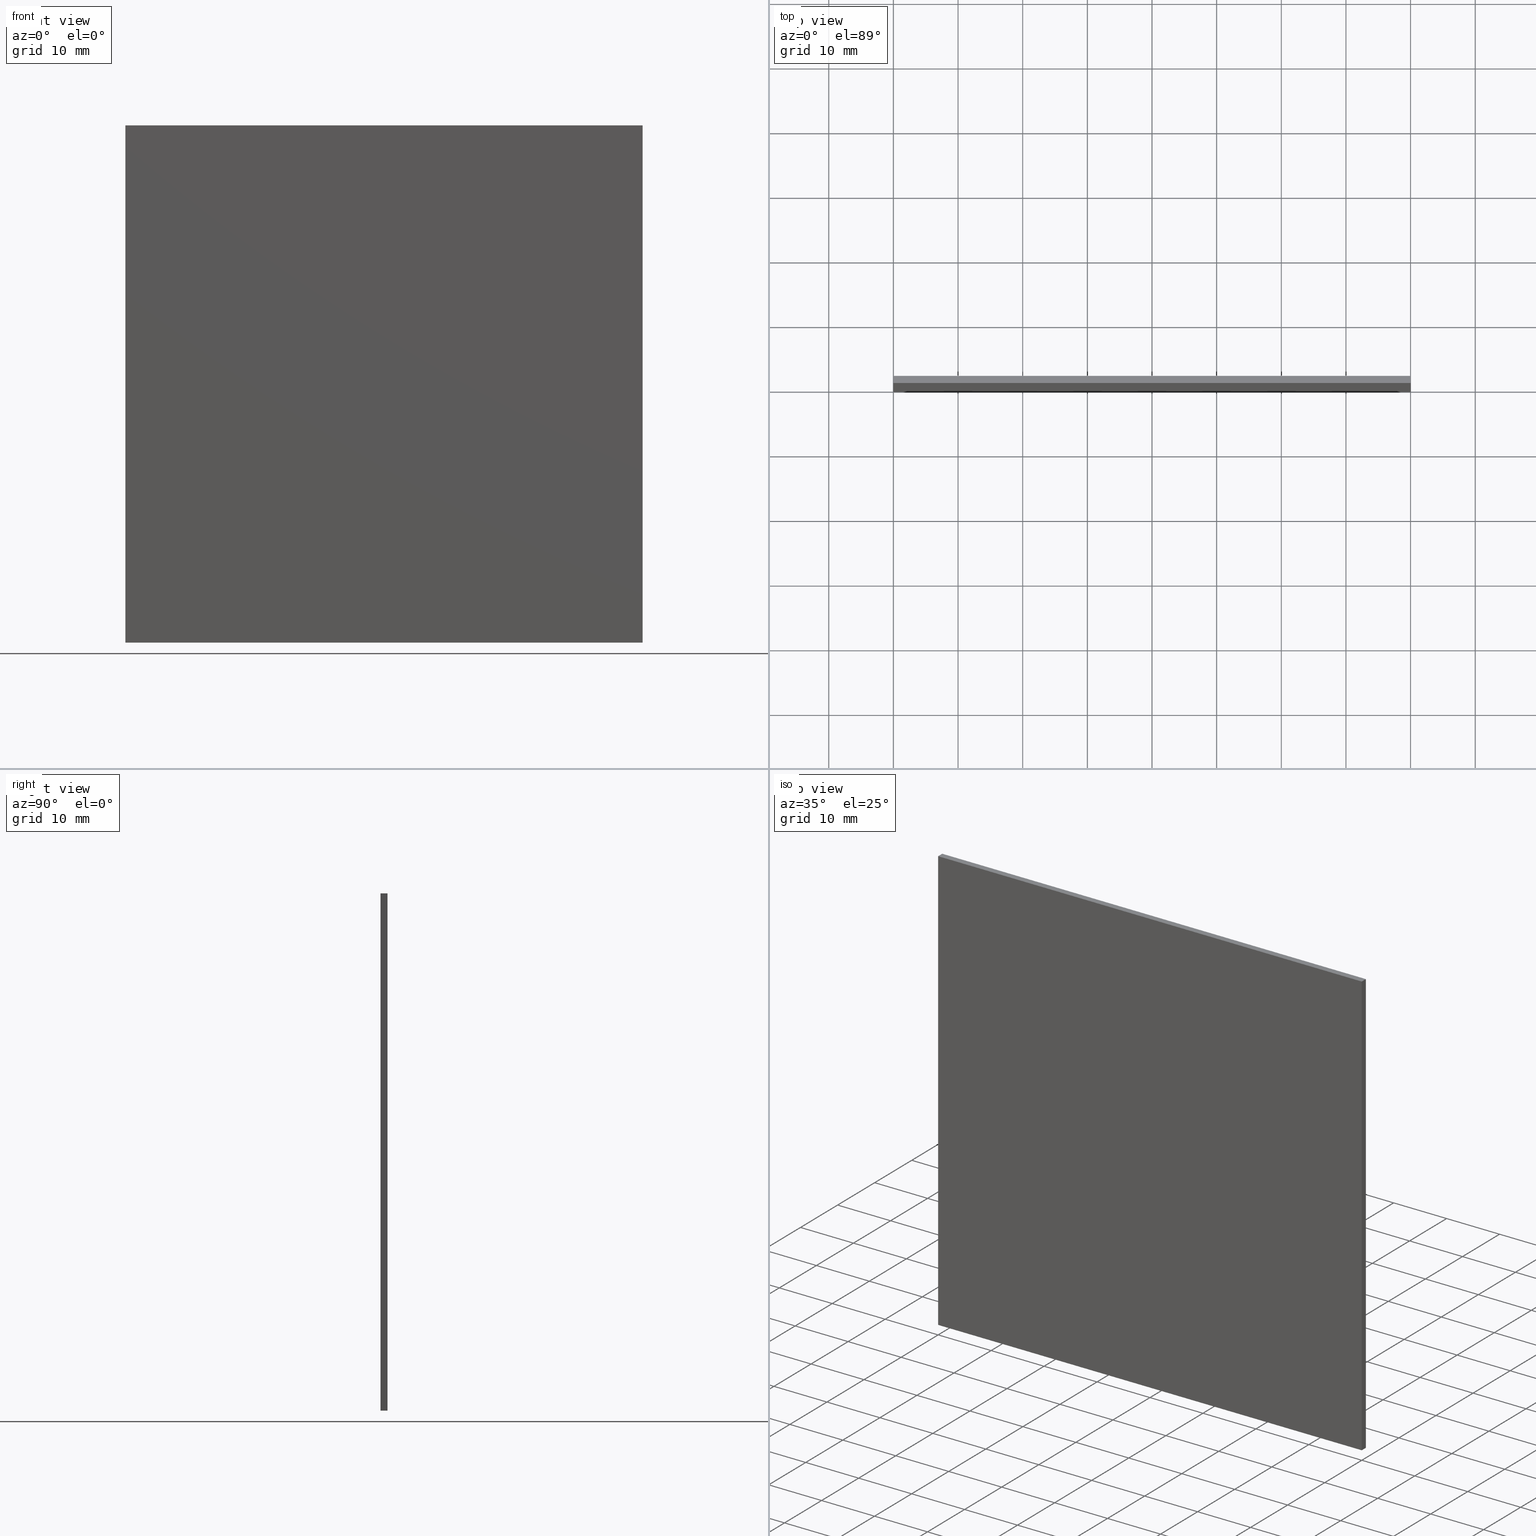
[diagram: canonical four-view strip — front | top / right | iso, engineering-drawing reading convention]
A machine part, canonical four-view strip (front | top / right | iso — engineering-drawing reading convention). The complete STEP part file that produces these views, byte-faithful:
ISO-10303-21;
HEADER;
FILE_DESCRIPTION (( 'STEP AP214' ),
    '1' );
FILE_NAME ('258507.STEP',
    '2019-08-06T09:45:51',
    ( 'user' ),
    ( '΢���й�' ),
    'SwSTEP 2.0',
    'SolidWorks 2016',
    '' );
FILE_SCHEMA (( 'AUTOMOTIVE_DESIGN' ));
ENDSEC;

DATA;
#1 = LINE ( 'NONE', #183, #92 ) ;
#2 = SURFACE_SIDE_STYLE ('',( #97 ) ) ;
#3 = SURFACE_STYLE_USAGE ( .BOTH. , #24 ) ;
#4 = PRODUCT_DEFINITION_SHAPE ( 'NONE', 'NONE',  #121 ) ;
#5 = ORIENTED_EDGE ( 'NONE', *, *, #111, .F. ) ;
#6 = AXIS2_PLACEMENT_3D ( 'NONE', #127, #174, #82 ) ;
#7 = DIRECTION ( 'NONE',  ( -0.0000000000000000000, -1.000000000000000000, -0.0000000000000000000 ) ) ;
#8 = FACE_OUTER_BOUND ( 'NONE', #64, .T. ) ;
#9 = ORIENTED_EDGE ( 'NONE', *, *, #91, .T. ) ;
#10 = EDGE_CURVE ( 'NONE', #187, #162, #81, .T. ) ;
#11 = VECTOR ( 'NONE', #36, 1000.000000000000000 ) ;
#12 = PRODUCT_DEFINITION_FORMATION_WITH_SPECIFIED_SOURCE ( '�κ�', '', #89, .NOT_KNOWN. ) ;
#13 = ORIENTED_EDGE ( 'NONE', *, *, #118, .F. ) ;
#14 =( GEOMETRIC_REPRESENTATION_CONTEXT ( 3 ) GLOBAL_UNCERTAINTY_ASSIGNED_CONTEXT ( ( #113 ) ) GLOBAL_UNIT_ASSIGNED_CONTEXT ( ( #69, #168, #154 ) ) REPRESENTATION_CONTEXT ( 'NONE', 'WORKASPACE' ) );
#15 = DIRECTION ( 'NONE',  ( 0.0000000000000000000, 0.0000000000000000000, 1.000000000000000000 ) ) ;
#16 = CARTESIAN_POINT ( 'NONE',  ( -40.00000000000000700, 0.0000000000000000000, 39.99999999999999300 ) ) ;
#17 = VERTEX_POINT ( 'NONE', #189 ) ;
#18 = DIRECTION ( 'NONE',  ( -1.000000000000000000, -0.0000000000000000000, -0.0000000000000000000 ) ) ;
#19 = UNCERTAINTY_MEASURE_WITH_UNIT (LENGTH_MEASURE( 1.000000000000000100E-005 ), #53, 'distance_accuracy_value', 'NONE');
#20 = EDGE_LOOP ( 'NONE', ( #54, #171, #94, #38 ) ) ;
#21 = MECHANICAL_DESIGN_GEOMETRIC_PRESENTATION_REPRESENTATION (  '', ( #30 ), #165 ) ;
#22 = ORIENTED_EDGE ( 'NONE', *, *, #150, .F. ) ;
#23 = DIRECTION ( 'NONE',  ( 1.000000000000000000, 0.0000000000000000000, 0.0000000000000000000 ) ) ;
#24 = SURFACE_SIDE_STYLE ('',( #84 ) ) ;
#25 = APPLICATION_PROTOCOL_DEFINITION ( 'draft international standard', 'automotive_design', 1998, #179 ) ;
#26 = EDGE_LOOP ( 'NONE', ( #46, #172, #68, #170 ) ) ;
#27 = AXIS2_PLACEMENT_3D ( 'NONE', #202, #105, #131 ) ;
#28 = SHAPE_DEFINITION_REPRESENTATION ( #4, #40 ) ;
#29 = EDGE_CURVE ( 'NONE', #140, #144, #138, .T. ) ;
#30 = STYLED_ITEM ( 'NONE', ( #142 ), #157 ) ;
#31 = ADVANCED_FACE ( 'NONE', ( #85 ), #190, .F. ) ;
#32 = CARTESIAN_POINT ( 'NONE',  ( 0.0000000000000000000, 0.0000000000000000000, 0.0000000000000000000 ) ) ;
#33 = ADVANCED_FACE ( 'NONE', ( #93 ), #44, .F. ) ;
#34 = CARTESIAN_POINT ( 'NONE',  ( 40.00000000000000000, 1.100000000000000100, -40.00000000000000700 ) ) ;
#35 = CARTESIAN_POINT ( 'NONE',  ( -40.00000000000001400, 0.0000000000000000000, -40.00000000000000700 ) ) ;
#36 = DIRECTION ( 'NONE',  ( 8.673617379884035500E-017, -0.0000000000000000000, -1.000000000000000000 ) ) ;
#37 = CARTESIAN_POINT ( 'NONE',  ( 40.00000000000000000, 1.100000000000000100, -40.00000000000000700 ) ) ;
#38 = ORIENTED_EDGE ( 'NONE', *, *, #43, .T. ) ;
#39 = DIRECTION ( 'NONE',  ( -0.0000000000000000000, -1.000000000000000000, -0.0000000000000000000 ) ) ;
#40 = ADVANCED_BREP_SHAPE_REPRESENTATION ( '258507', ( #157, #63 ), #159 ) ;
#41 = VERTEX_POINT ( 'NONE', #194 ) ;
#42 = VECTOR ( 'NONE', #60, 1000.000000000000000 ) ;
#43 = EDGE_CURVE ( 'NONE', #187, #133, #59, .T. ) ;
#44 = PLANE ( 'NONE',  #27 ) ;
#45 = ADVANCED_FACE ( 'NONE', ( #123 ), #184, .T. ) ;
#46 = ORIENTED_EDGE ( 'NONE', *, *, #199, .T. ) ;
#47 = CARTESIAN_POINT ( 'NONE',  ( -40.00000000000000700, 1.100000000000000100, 39.99999999999999300 ) ) ;
#48 = PRODUCT_RELATED_PRODUCT_CATEGORY ( 'part', '', ( #89 ) ) ;
#49 = ADVANCED_FACE ( 'NONE', ( #197 ), #87, .F. ) ;
#50 = DIRECTION ( 'NONE',  ( 1.000000000000000000, 0.0000000000000000000, 0.0000000000000000000 ) ) ;
#51 = VECTOR ( 'NONE', #178, 1000.000000000000000 ) ;
#52 = FACE_OUTER_BOUND ( 'NONE', #26, .T. ) ;
#53 =( LENGTH_UNIT ( ) NAMED_UNIT ( * ) SI_UNIT ( .MILLI., .METRE. ) );
#54 = ORIENTED_EDGE ( 'NONE', *, *, #118, .T. ) ;
#55 =( NAMED_UNIT ( * ) SI_UNIT ( $, .STERADIAN. ) SOLID_ANGLE_UNIT ( ) );
#56 = DIRECTION ( 'NONE',  ( 0.0000000000000000000, 0.0000000000000000000, -1.000000000000000000 ) ) ;
#57 = VECTOR ( 'NONE', #23, 1000.000000000000000 ) ;
#58 = CARTESIAN_POINT ( 'NONE',  ( -40.00000000000001400, 0.0000000000000000000, -40.00000000000000700 ) ) ;
#59 = LINE ( 'NONE', #86, #116 ) ;
#60 = DIRECTION ( 'NONE',  ( 8.673617379884035500E-017, -0.0000000000000000000, -1.000000000000000000 ) ) ;
#61 = ORIENTED_EDGE ( 'NONE', *, *, #109, .T. ) ;
#62 = VECTOR ( 'NONE', #149, 1000.000000000000000 ) ;
#63 = AXIS2_PLACEMENT_3D ( 'NONE', #136, #192, #115 ) ;
#64 = EDGE_LOOP ( 'NONE', ( #61, #22, #95, #143 ) ) ;
#65 = ADVANCED_FACE ( 'NONE', ( #52 ), #163, .F. ) ;
#66 = AXIS2_PLACEMENT_3D ( 'NONE', #169, #56, #182 ) ;
#67 = CARTESIAN_POINT ( 'NONE',  ( 39.99999999999999300, 1.100000000000000100, 39.99999999999999300 ) ) ;
#68 = ORIENTED_EDGE ( 'NONE', *, *, #141, .F. ) ;
#69 =( LENGTH_UNIT ( ) NAMED_UNIT ( * ) SI_UNIT ( .MILLI., .METRE. ) );
#70 = FILL_AREA_STYLE_COLOUR ( '', #200 ) ;
#71 = ORIENTED_EDGE ( 'NONE', *, *, #155, .F. ) ;
#72 = PRODUCT_DEFINITION_CONTEXT ( 'detailed design', #179, 'design' ) ;
#73 =( NAMED_UNIT ( * ) SI_UNIT ( $, .STERADIAN. ) SOLID_ANGLE_UNIT ( ) );
#74 = APPLICATION_CONTEXT ( 'automotive_design' ) ;
#75 = DIRECTION ( 'NONE',  ( -8.673617379884034200E-017, 0.0000000000000000000, 1.000000000000000000 ) ) ;
#76 = CARTESIAN_POINT ( 'NONE',  ( 39.99999999999999300, 0.0000000000000000000, 39.99999999999999300 ) ) ;
#77 = VECTOR ( 'NONE', #145, 1000.000000000000000 ) ;
#78 = EDGE_LOOP ( 'NONE', ( #90, #126, #13, #104 ) ) ;
#79 = MECHANICAL_DESIGN_GEOMETRIC_PRESENTATION_REPRESENTATION (  '', ( #198 ), #14 ) ;
#80 = VECTOR ( 'NONE', #181, 1000.000000000000000 ) ;
#81 = LINE ( 'NONE', #191, #77 ) ;
#82 = DIRECTION ( 'NONE',  ( 1.000000000000000000, 0.0000000000000000000, -0.0000000000000000000 ) ) ;
#83 =( NAMED_UNIT ( * ) PLANE_ANGLE_UNIT ( ) SI_UNIT ( $, .RADIAN. ) );
#84 = SURFACE_STYLE_FILL_AREA ( #107 ) ;
#85 = FACE_OUTER_BOUND ( 'NONE', #185, .T. ) ;
#86 = CARTESIAN_POINT ( 'NONE',  ( -40.00000000000001400, 1.100000000000000100, -40.00000000000000700 ) ) ;
#87 = PLANE ( 'NONE',  #132 ) ;
#88 =( NAMED_UNIT ( * ) PLANE_ANGLE_UNIT ( ) SI_UNIT ( $, .RADIAN. ) );
#89 = PRODUCT ( '258507', '258507', '', ( #164 ) ) ;
#90 = ORIENTED_EDGE ( 'NONE', *, *, #109, .F. ) ;
#91 = EDGE_CURVE ( 'NONE', #162, #140, #148, .T. ) ;
#92 = VECTOR ( 'NONE', #18, 1000.000000000000000 ) ;
#93 = FACE_OUTER_BOUND ( 'NONE', #20, .T. ) ;
#94 = ORIENTED_EDGE ( 'NONE', *, *, #10, .F. ) ;
#95 = ORIENTED_EDGE ( 'NONE', *, *, #100, .F. ) ;
#96 = CARTESIAN_POINT ( 'NONE',  ( 40.00000000000000000, 1.100000000000000100, -40.00000000000000700 ) ) ;
#97 = SURFACE_STYLE_FILL_AREA ( #129 ) ;
#98 = LINE ( 'NONE', #96, #42 ) ;
#99 = CARTESIAN_POINT ( 'NONE',  ( 40.00000000000000000, 1.100000000000000100, -40.00000000000000700 ) ) ;
#100 = EDGE_CURVE ( 'NONE', #41, #153, #98, .T. ) ;
#101 = ADVANCED_FACE ( 'NONE', ( #8 ), #167, .F. ) ;
#102 =( LENGTH_UNIT ( ) NAMED_UNIT ( * ) SI_UNIT ( .MILLI., .METRE. ) );
#103 = SURFACE_STYLE_USAGE ( .BOTH. , #2 ) ;
#104 = ORIENTED_EDGE ( 'NONE', *, *, #199, .F. ) ;
#105 = DIRECTION ( 'NONE',  ( 1.000000000000000000, 0.0000000000000000000, -8.673617379884034200E-017 ) ) ;
#106 = VECTOR ( 'NONE', #196, 1000.000000000000000 ) ;
#107 = FILL_AREA_STYLE ('',( #70 ) ) ;
#108 = UNCERTAINTY_MEASURE_WITH_UNIT (LENGTH_MEASURE( 1.000000000000000100E-005 ), #102, 'distance_accuracy_value', 'NONE');
#109 = EDGE_CURVE ( 'NONE', #144, #17, #186, .T. ) ;
#110 = ORIENTED_EDGE ( 'NONE', *, *, #29, .T. ) ;
#111 = EDGE_CURVE ( 'NONE', #41, #144, #176, .T. ) ;
#112 = AXIS2_PLACEMENT_3D ( 'NONE', #158, #146, #188 ) ;
#113 = UNCERTAINTY_MEASURE_WITH_UNIT (LENGTH_MEASURE( 1.000000000000000100E-005 ), #69, 'distance_accuracy_value', 'NONE');
#114 = DIRECTION ( 'NONE',  ( 0.0000000000000000000, 1.000000000000000000, -0.0000000000000000000 ) ) ;
#115 = DIRECTION ( 'NONE',  ( 1.000000000000000000, 0.0000000000000000000, 0.0000000000000000000 ) ) ;
#116 = VECTOR ( 'NONE', #7, 1000.000000000000000 ) ;
#117 = CARTESIAN_POINT ( 'NONE',  ( -40.00000000000000700, 1.100000000000000100, 39.99999999999999300 ) ) ;
#118 = EDGE_CURVE ( 'NONE', #133, #140, #166, .T. ) ;
#119 = CLOSED_SHELL ( 'NONE', ( #101, #65, #33, #31, #45, #49 ) ) ;
#120 = PRESENTATION_LAYER_ASSIGNMENT (  '', '', ( #198 ) ) ;
#121 = PRODUCT_DEFINITION ( 'δ֪', '', #12, #72 ) ;
#122 = LINE ( 'NONE', #35, #80 ) ;
#123 = FACE_OUTER_BOUND ( 'NONE', #180, .T. ) ;
#124 = ORIENTED_EDGE ( 'NONE', *, *, #155, .T. ) ;
#125 = PRESENTATION_LAYER_ASSIGNMENT (  '', '', ( #30 ) ) ;
#126 = ORIENTED_EDGE ( 'NONE', *, *, #29, .F. ) ;
#127 = CARTESIAN_POINT ( 'NONE',  ( -40.00000000000001400, 1.100000000000000100, -40.00000000000000700 ) ) ;
#128 = COLOUR_RGB ( '',1.000000000000000000, 1.000000000000000000, 1.000000000000000000 ) ;
#129 = FILL_AREA_STYLE ('',( #156 ) ) ;
#130 = VECTOR ( 'NONE', #50, 1000.000000000000000 ) ;
#131 = DIRECTION ( 'NONE',  ( -8.673617379884034200E-017, 0.0000000000000000000, -1.000000000000000000 ) ) ;
#132 = AXIS2_PLACEMENT_3D ( 'NONE', #32, #114, #15 ) ;
#133 = VERTEX_POINT ( 'NONE', #135 ) ;
#134 = APPLICATION_PROTOCOL_DEFINITION ( 'draft international standard', 'automotive_design', 1998, #74 ) ;
#135 = CARTESIAN_POINT ( 'NONE',  ( -40.00000000000001400, 0.0000000000000000000, -40.00000000000000700 ) ) ;
#136 = CARTESIAN_POINT ( 'NONE',  ( 0.0000000000000000000, 0.0000000000000000000, 0.0000000000000000000 ) ) ;
#137 = LINE ( 'NONE', #37, #51 ) ;
#138 = LINE ( 'NONE', #16, #130 ) ;
#139 = CARTESIAN_POINT ( 'NONE',  ( -40.00000000000001400, 1.100000000000000100, -40.00000000000000700 ) ) ;
#140 = VERTEX_POINT ( 'NONE', #152 ) ;
#141 = EDGE_CURVE ( 'NONE', #153, #187, #1, .T. ) ;
#142 = PRESENTATION_STYLE_ASSIGNMENT (( #103 ) ) ;
#143 = ORIENTED_EDGE ( 'NONE', *, *, #111, .T. ) ;
#144 = VERTEX_POINT ( 'NONE', #76 ) ;
#145 = DIRECTION ( 'NONE',  ( 8.673617379884035500E-017, 0.0000000000000000000, 1.000000000000000000 ) ) ;
#146 = DIRECTION ( 'NONE',  ( 0.0000000000000000000, 1.000000000000000000, -0.0000000000000000000 ) ) ;
#147 = PRESENTATION_STYLE_ASSIGNMENT (( #3 ) ) ;
#148 = LINE ( 'NONE', #47, #201 ) ;
#149 = DIRECTION ( 'NONE',  ( -0.0000000000000000000, -1.000000000000000000, -0.0000000000000000000 ) ) ;
#150 = EDGE_CURVE ( 'NONE', #153, #17, #137, .T. ) ;
#151 = CARTESIAN_POINT ( 'NONE',  ( 40.00000000000000000, 0.0000000000000000000, -40.00000000000000700 ) ) ;
#152 = CARTESIAN_POINT ( 'NONE',  ( -40.00000000000000700, 0.0000000000000000000, 39.99999999999999300 ) ) ;
#153 = VERTEX_POINT ( 'NONE', #99 ) ;
#154 =( NAMED_UNIT ( * ) SI_UNIT ( $, .STERADIAN. ) SOLID_ANGLE_UNIT ( ) );
#155 = EDGE_CURVE ( 'NONE', #162, #41, #175, .T. ) ;
#156 = FILL_AREA_STYLE_COLOUR ( '', #128 ) ;
#157 = MANIFOLD_SOLID_BREP ( '͹̨-����1', #119 ) ;
#158 = CARTESIAN_POINT ( 'NONE',  ( 0.0000000000000000000, 1.100000000000000100, 0.0000000000000000000 ) ) ;
#159 =( GEOMETRIC_REPRESENTATION_CONTEXT ( 3 ) GLOBAL_UNCERTAINTY_ASSIGNED_CONTEXT ( ( #108 ) ) GLOBAL_UNIT_ASSIGNED_CONTEXT ( ( #102, #88, #73 ) ) REPRESENTATION_CONTEXT ( 'NONE', 'WORKASPACE' ) );
#160 = ORIENTED_EDGE ( 'NONE', *, *, #141, .T. ) ;
#161 = ORIENTED_EDGE ( 'NONE', *, *, #10, .T. ) ;
#162 = VERTEX_POINT ( 'NONE', #117 ) ;
#163 = PLANE ( 'NONE',  #6 ) ;
#164 = PRODUCT_CONTEXT ( 'NONE', #74, 'mechanical' ) ;
#165 =( GEOMETRIC_REPRESENTATION_CONTEXT ( 3 ) GLOBAL_UNCERTAINTY_ASSIGNED_CONTEXT ( ( #19 ) ) GLOBAL_UNIT_ASSIGNED_CONTEXT ( ( #53, #83, #55 ) ) REPRESENTATION_CONTEXT ( 'NONE', 'WORKASPACE' ) );
#166 = LINE ( 'NONE', #58, #106 ) ;
#167 = PLANE ( 'NONE',  #177 ) ;
#168 =( NAMED_UNIT ( * ) PLANE_ANGLE_UNIT ( ) SI_UNIT ( $, .RADIAN. ) );
#169 = CARTESIAN_POINT ( 'NONE',  ( -40.00000000000000700, 1.100000000000000100, 39.99999999999999300 ) ) ;
#170 = ORIENTED_EDGE ( 'NONE', *, *, #150, .T. ) ;
#171 = ORIENTED_EDGE ( 'NONE', *, *, #91, .F. ) ;
#172 = ORIENTED_EDGE ( 'NONE', *, *, #43, .F. ) ;
#173 = ORIENTED_EDGE ( 'NONE', *, *, #100, .T. ) ;
#174 = DIRECTION ( 'NONE',  ( 0.0000000000000000000, 0.0000000000000000000, 1.000000000000000000 ) ) ;
#175 = LINE ( 'NONE', #195, #57 ) ;
#176 = LINE ( 'NONE', #67, #62 ) ;
#177 = AXIS2_PLACEMENT_3D ( 'NONE', #34, #193, #75 ) ;
#178 = DIRECTION ( 'NONE',  ( -0.0000000000000000000, -1.000000000000000000, -0.0000000000000000000 ) ) ;
#179 = APPLICATION_CONTEXT ( 'automotive_design' ) ;
#180 = EDGE_LOOP ( 'NONE', ( #173, #160, #161, #124 ) ) ;
#181 = DIRECTION ( 'NONE',  ( -1.000000000000000000, -0.0000000000000000000, -0.0000000000000000000 ) ) ;
#182 = DIRECTION ( 'NONE',  ( -1.000000000000000000, 0.0000000000000000000, -0.0000000000000000000 ) ) ;
#183 = CARTESIAN_POINT ( 'NONE',  ( -40.00000000000001400, 1.100000000000000100, -40.00000000000000700 ) ) ;
#184 = PLANE ( 'NONE',  #112 ) ;
#185 = EDGE_LOOP ( 'NONE', ( #110, #5, #71, #9 ) ) ;
#186 = LINE ( 'NONE', #151, #11 ) ;
#187 = VERTEX_POINT ( 'NONE', #139 ) ;
#188 = DIRECTION ( 'NONE',  ( 0.0000000000000000000, 0.0000000000000000000, 1.000000000000000000 ) ) ;
#189 = CARTESIAN_POINT ( 'NONE',  ( 40.00000000000000000, 0.0000000000000000000, -40.00000000000000700 ) ) ;
#190 = PLANE ( 'NONE',  #66 ) ;
#191 = CARTESIAN_POINT ( 'NONE',  ( -40.00000000000001400, 1.100000000000000100, -40.00000000000000700 ) ) ;
#192 = DIRECTION ( 'NONE',  ( 0.0000000000000000000, 0.0000000000000000000, 1.000000000000000000 ) ) ;
#193 = DIRECTION ( 'NONE',  ( -1.000000000000000000, 0.0000000000000000000, -8.673617379884034200E-017 ) ) ;
#194 = CARTESIAN_POINT ( 'NONE',  ( 39.99999999999999300, 1.100000000000000100, 39.99999999999999300 ) ) ;
#195 = CARTESIAN_POINT ( 'NONE',  ( -40.00000000000000700, 1.100000000000000100, 39.99999999999999300 ) ) ;
#196 = DIRECTION ( 'NONE',  ( 8.673617379884035500E-017, 0.0000000000000000000, 1.000000000000000000 ) ) ;
#197 = FACE_OUTER_BOUND ( 'NONE', #78, .T. ) ;
#198 = STYLED_ITEM ( 'NONE', ( #147 ), #40 ) ;
#199 = EDGE_CURVE ( 'NONE', #17, #133, #122, .T. ) ;
#200 = COLOUR_RGB ( '',1.000000000000000000, 1.000000000000000000, 1.000000000000000000 ) ;
#201 = VECTOR ( 'NONE', #39, 1000.000000000000000 ) ;
#202 = CARTESIAN_POINT ( 'NONE',  ( -40.00000000000001400, 1.100000000000000100, -40.00000000000000700 ) ) ;
ENDSEC;
END-ISO-10303-21;
